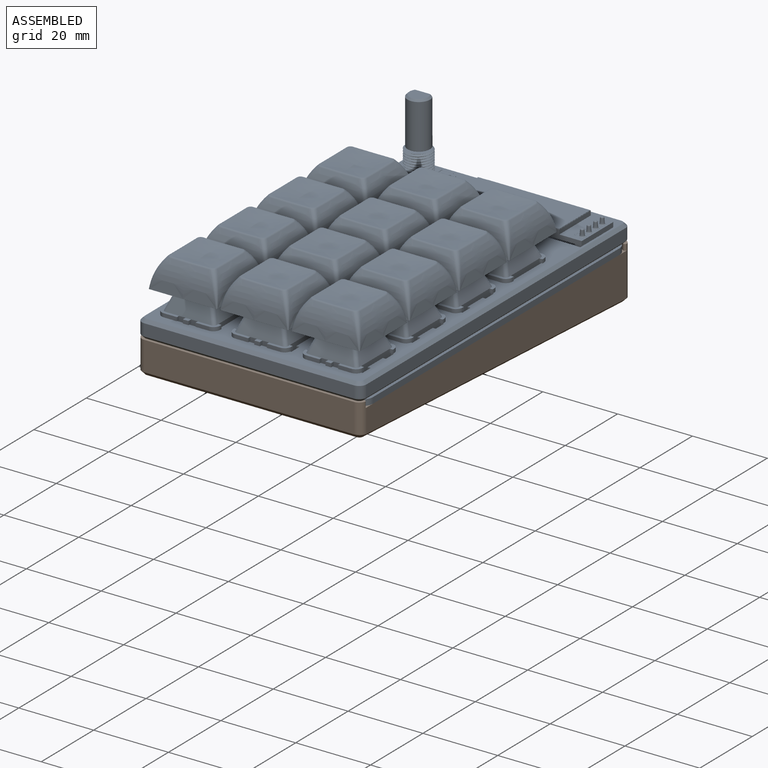
[diagram: assembled view]
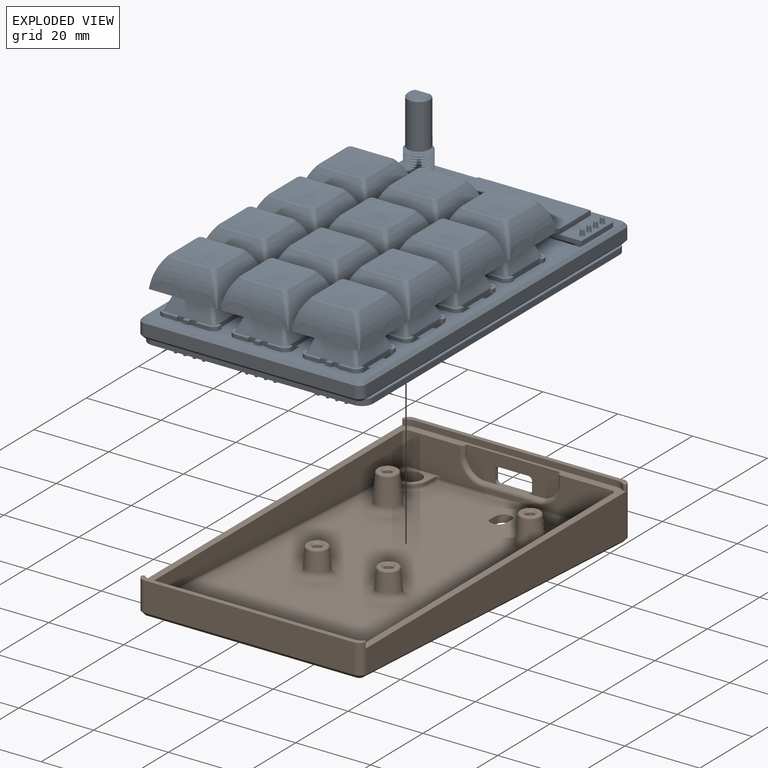
[diagram: exploded view]
GUIDED TOUR — FREECAD ASSEMBLY "keeby cat case slim-edge asm3"

This assembly has 2 components, labeled P0..P1 below (a component is one placed body or linked part; the same part can appear more than once), held together by 0 modeled joints plus 1 derived contact edge. A joint is a constraint between two components; its type names the relative motion it leaves free:
  CONTACT — a derived adjacency edge — the two components touch in the source model (clearance under 2% of the assembly's diagonal); it is measured from the geometry, not a modeled constraint.
Axis/direction vectors are unit vectors and 'through' points are millimeter coordinates, both in the assembly's world frame.

MATES
  1. CONTACT "contact_0_1": P0 <-> P1, contact direction (0.000, 0.000, -1.000) through (-27.88, -20.69, -1.68) mm (derived from contact, not a modeled constraint)

ASSEMBLY ORDER
  1. P0 — the base component [order verified]
  2. P1 [order verified]
(P1 verified with a relaxed clearance tolerance: the source model stores slight part interference there.)
Order-tag legend:
  [order verified] — this step's position reverses a verified removal order: the component was checked to insert without passing through the ones already placed.

Of the 2 components, 1 carries a construction recipe — the FreeCAD feature program (sketches with constraints, then the solid features that consume them) that regenerates the part from scratch, quoted from this document or from the linked companion document it references; the rest are supplied as boundary geometry only. The tour below walks the components in assembly order: each is shown spotlighted twice — in the assembled view, then in the exploded view, where a leader line traces a displaced component back to its assembled socket (components that stay in place when exploded have no leader line; saturated green if recipe-attached, orange if geometry-only; every other component desaturated gray) — followed by its recipe or geometry summary and the mates that hold it.
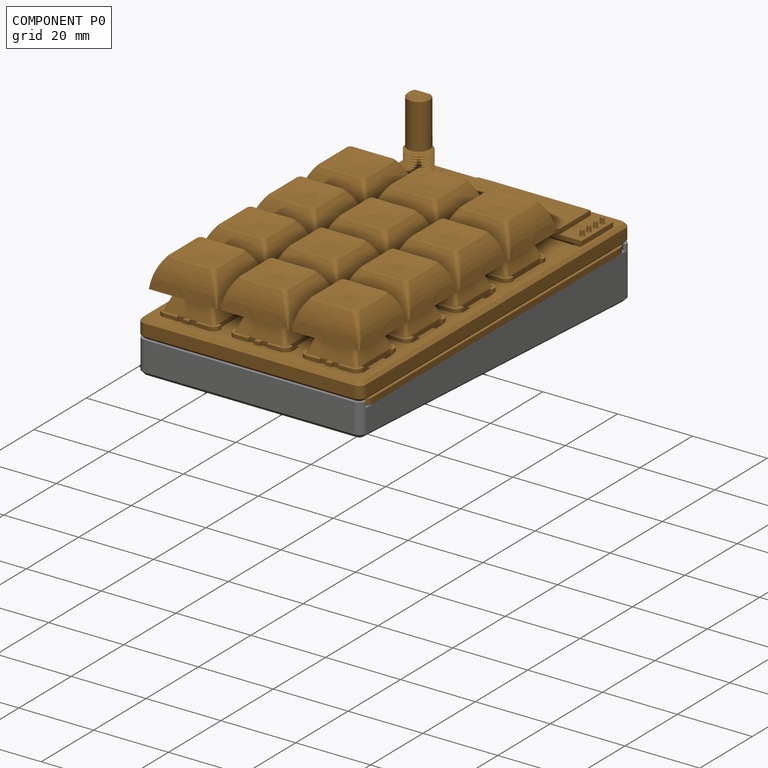
[diagram: component P0 — assembled]
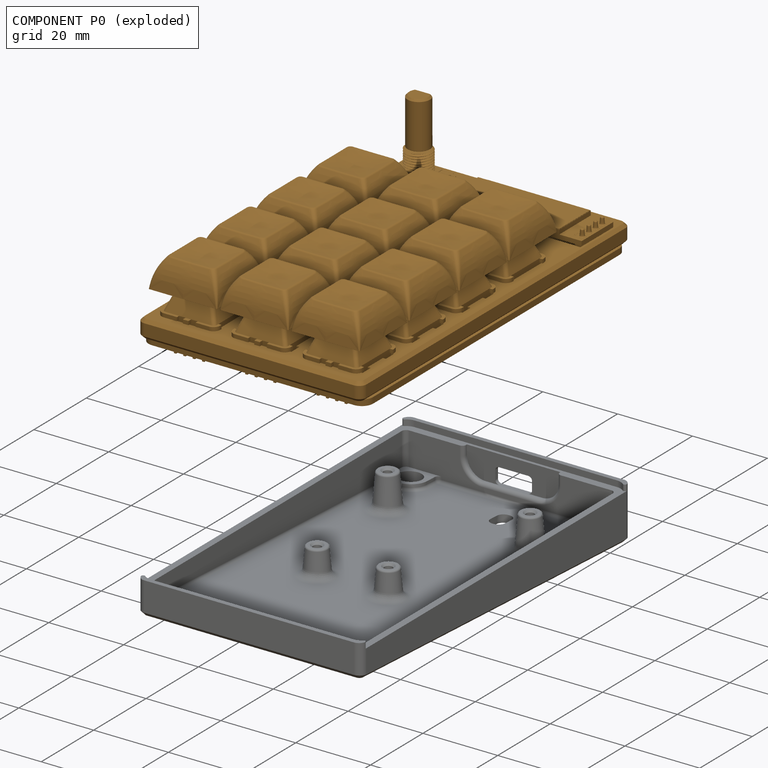
[diagram: component P0 — exploded]
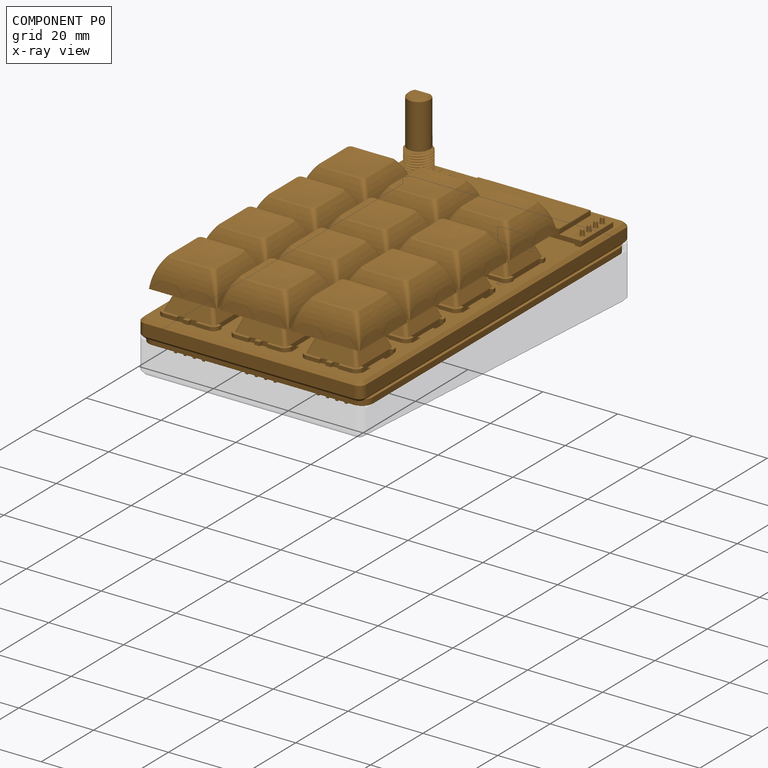
[diagram: component P0 — x-ray view]
COMPONENT P0 — geometry summary ("keeby cat"; no construction recipe available for this part):
  bounding box: 102.9 x 60.0 x 41.8 mm
  tessellated surface: 581,860 triangles
  volume: 65548 mm^3 (25% of its bounding box)
Held by: resting contact with P1 (derived edge).
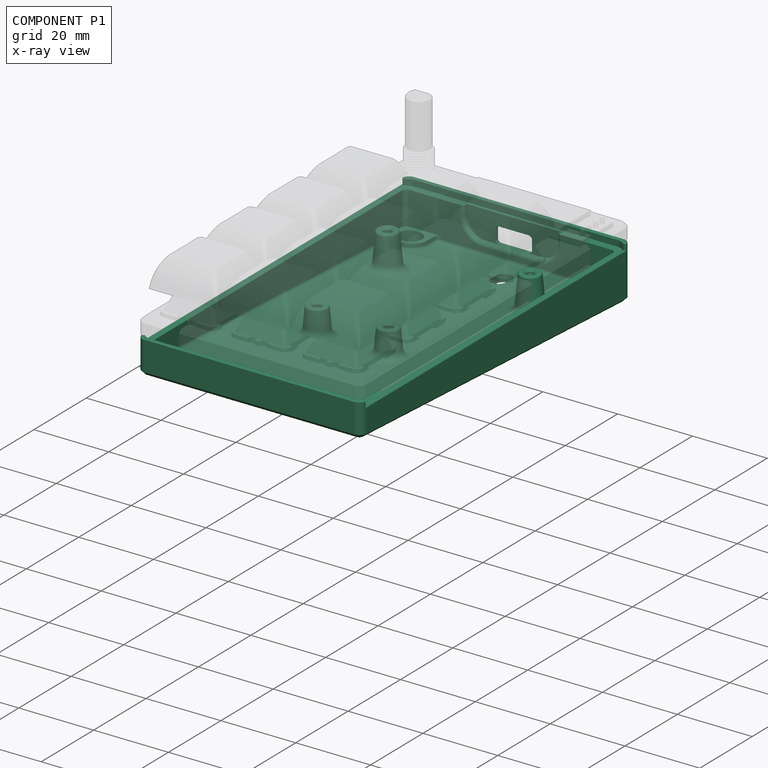
[diagram: component P1 — x-ray view]
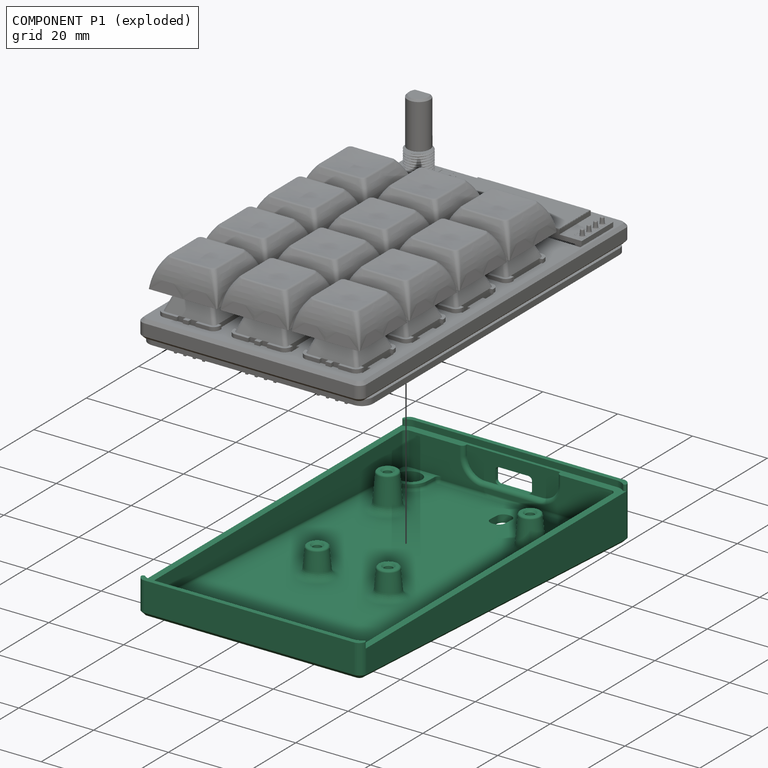
[diagram: component P1 — exploded]
COMPONENT P1 — recipe-attached ("lower case", modeled in this document).
Held by: resting contact with P0 (derived edge).
Construction recipe (the document's own serialized feature program — sketch geometry with constraints, then the solid features built on it; lengths are millimeters unless a unit is written):

FEATURE [PartDesign::ShapeBinder] CopyPcb_61fa
  Placement = pos=(-99.78,60.2375,-1.6) rot=(0,0,1;0rad)
  TraceSupport = false
  TreeRank = 0
FEATURE [PartDesign::SubShapeBinder] Binder
  BindCopyOnChange = 0
  BindMode = 0
  ClaimChildren = false
  Context = -> Part001 [Body001.Binder.]
  FillStyle = 0
  Fuse = false
  MakeFace = true
  PartialLoad = false
  Refine = true
  Relative = true
  Support = -> [Part[Body.Chamfer.Face24]]
  TreeRank = 0
  _Version = 2
FEATURE [Sketcher::SketchObject] Sketch
  ExternalGeometry = -> [CopyPcb_61fa,Binder]
  FullyConstrained = true
  MapMode = 5
  Placement = pos=(-99.78,60.2375,-1.6) rot=(1,0,0;3.14159rad)
  Support = -> [CopyPcb_61fa]
  TreeRank = 0
  sketch-geometry (6):
    g0: LineSegment StartX=62.16 StartY=158.562 StartZ=0 EndX=122.16 EndY=158.562 EndZ=0
    g1: LineSegment StartX=122.16 StartY=158.562 StartZ=0 EndX=122.16 EndY=55.5755 EndZ=0
    g2: LineSegment StartX=122.16 StartY=55.5755 StartZ=0 EndX=62.16 EndY=55.5755 EndZ=0
    g3: LineSegment StartX=62.16 StartY=55.5755 StartZ=0 EndX=62.16 EndY=158.562 EndZ=0
    g4: LineSegment [constr] StartX=119.16 StartY=55.5755 StartZ=0 EndX=119.16 EndY=57.069 EndZ=0
    g5: LineSegment [constr] StartX=119.16 StartY=157.069 StartZ=0 EndX=119.16 EndY=158.562 EndZ=0
  constraints (18):
    c: Coincident(g0,g1)
    c: Coincident(g1,g2)
    c: Coincident(g2,g3)
    c: Coincident(g3,g0)
    c: Horizontal(g0)
    c: Horizontal(g2)
    c: Vertical(g1)
    c: Vertical(g3)
    c: PointOnObject(g4,g2)
    c: Vertical(g4)
    c: Coincident(g-3,g4)
    c: Coincident(g5,g-4)
    c: PointOnObject(g5,g-5)
    c: Vertical(g5)
    c: Equal(g5,g4)
    c: PointOnObject(g-7,g3)
    c: PointOnObject(g5,g0)
    c: PointOnObject(g-6,g1)
FEATURE [PartDesign::Pad] Pad
  ClaimChildren = false
  Direction = (1,1,1)
  Fit = 0
  FitJoin = 0
  InnerFit = 0
  InnerFitJoin = 0
  InnerTaperAngle = 0
  InnerTaperAngleRev = 0
  Length = 25
  Length2 = 100
  NewSolid = false
  Placement = pos=(-99.78,60.2375,-1.6) rot=(0,0,1;0rad)
  Profile = -> Sketch
  Suppress = false
  TreeRank = 0
  Type = 0
  _ProfileBasedVersion = 0
FEATURE [Sketcher::SketchObject] Sketch001  label="slope sketch"
  ExternalGeometry = -> [Pad]
  FullyConstrained = true
  MapMode = 5
  Placement = pos=(22.38,60.2375,-1.6) rot=(0.57735,0.57735,0.57735;2.0944rad)
  Support = -> [Pad]
  TreeRank = 0
  sketch-geometry (8):
    g0: LineSegment [constr] StartX=-55.5755 StartY=0 StartZ=0 EndX=-158.562 EndY=0 EndZ=0
    g1: LineSegment [constr] StartX=-158.562 StartY=0 StartZ=0 EndX=-158.562 EndY=-7.22804 EndZ=0
    g2: LineSegment StartX=-158.562 StartY=-7.22804 StartZ=0 EndX=-55.5755 EndY=-12.6254 EndZ=0
    g3: LineSegment [constr] StartX=-55.5755 StartY=-12.6254 StartZ=0 EndX=-55.5755 EndY=0 EndZ=0
    g4: LineSegment StartX=-55.5755 StartY=-25 StartZ=0 EndX=-158.562 EndY=-25 EndZ=0
    g5: LineSegment [constr] StartX=-153.569 StartY=-7.48972 StartZ=0 EndX=-153.177 EndY=0 EndZ=0
    g6: LineSegment StartX=-158.562 StartY=-7.22804 StartZ=0 EndX=-158.562 EndY=-25 EndZ=0
    g7: LineSegment StartX=-55.5755 StartY=-12.6254 StartZ=0 EndX=-55.5755 EndY=-25 EndZ=0
  constraints (20):
    c: Coincident(g0,g-4)
    c: Coincident(g0,g-3)
    c: Coincident(g1,g0)
    c: PointOnObject(g1,g-3)
    c: Coincident(g2,g1)
    c: Coincident(g3,g0)
    c: Coincident(g4,g-3)
    c: Angle(g2,g4) = 0.0523599
    c: PointOnObject(g5,g2)
    c: Perpendicular(g2,g5)
    c: Distance(g5) = 7.5
    c: Distance(g5,g1) = 5
    c: PointOnObject(g5,g0)
    c: Coincident(g6,g2)
    c: Coincident(g6,g4)
    c: Coincident(g7,g2)
    c: Coincident(g7,g4)
    c: Vertical(g7)
    c: Coincident(g-4,g4)
    c: Coincident(g2,g3)
FEATURE [PartDesign::Pocket] Pocket
  BaseFeature = -> Pad
  ClaimChildren = false
  Fit = 0
  FitJoin = 0
  InnerFit = 0
  InnerFitJoin = 0
  InnerTaperAngle = 0
  InnerTaperAngleRev = 0
  Length = 5
  Length2 = 100
  NewSolid = false
  Placement = pos=(-99.78,60.2375,-1.6) rot=(0,0,1;0rad)
  Profile = -> Sketch001
  Suppress = false
  TreeRank = 0
  Type = 1
  _ProfileBasedVersion = 0
FEATURE [Sketcher::SketchObject] Sketch002
  ExternalGeometry = -> [CopyPcb_61fa,Sketch]
  FullyConstrained = true
  MapMode = 5
  Placement = pos=(-99.78,60.2375,-1.6) rot=(0,0,1;0rad)
  Support = -> [Pocket]
  TreeRank = 0
  sketch-geometry (4):
    g0: LineSegment StartX=122.16 StartY=-157.369 StartZ=0 EndX=62.16 EndY=-157.369 EndZ=0
    g1: LineSegment StartX=122.16 StartY=-56.769 StartZ=0 EndX=62.16 EndY=-56.769 EndZ=0
    g2: LineSegment StartX=122.16 StartY=-157.369 StartZ=0 EndX=122.16 EndY=-56.769 EndZ=0
    g3: LineSegment StartX=62.16 StartY=-56.769 StartZ=0 EndX=62.16 EndY=-157.369 EndZ=0
  constraints (13):
    c: Horizontal(g0)
    c: Horizontal(g1)
    c: Coincident(g2,g0)
    c: Coincident(g2,g1)
    c: Vertical(g2)
    c: Coincident(g3,g1)
    c: Coincident(g3,g0)
    c: Vertical(g3)
    c: Vertical(g0,g-5)
    c: Vertical(g0,g-6)
    c: DistanceY(g-5,g0) = 1.1935
    c: DistanceY(g2,g-3) = 0.3
    c: DistanceY(g-4,g1) = 0.3
FEATURE [PartDesign::Pad] Pad001
  BaseFeature = -> Pocket
  ClaimChildren = false
  Direction = (1,1,1)
  Fit = 0
  FitJoin = 0
  InnerFit = 0
  InnerFitJoin = 0
  InnerTaperAngle = 0
  InnerTaperAngleRev = 0
  Length = 1.6
  Length2 = 100
  NewSolid = false
  Placement = pos=(-99.78,60.2375,-1.6) rot=(0,0,1;0rad)
  Profile = -> Pad [Face5]
  Suppress = false
  TreeRank = 0
  Type = 0
  _ProfileBasedVersion = 0
FEATURE [PartDesign::Fillet] Fillet001
  Base = -> Pad001 [Edge2,Edge4,Edge9,Edge14]
  BaseFeature = -> Pad001
  NewSolid = false
  Placement = pos=(-99.78,60.2375,-1.6) rot=(0,0,1;0rad)
  Radius = 2
  SupportTransform = false
  Suppress = false
  TreeRank = 0
FEATURE [PartDesign::Pocket] Pocket001
  BaseFeature = -> Fillet001
  ClaimChildren = false
  Fit = 0
  FitJoin = 0
  InnerFit = 0
  InnerFitJoin = 0
  InnerTaperAngle = 0
  InnerTaperAngleRev = 0
  Length = 1.6
  Length2 = 100
  NewSolid = false
  Placement = pos=(-99.78,60.2375,-1.6) rot=(0,0,1;0rad)
  Profile = -> Sketch002
  Reversed = true
  Suppress = false
  TreeRank = 0
  Type = 0
  _ProfileBasedVersion = 0
FEATURE [Sketcher::SketchObject] Sketch003
  ExternalGeometry = -> [CopyPcb_61fa]
  FullyConstrained = true
  MapMode = 5
  Placement = pos=(-99.78,60.2375,-1.6) rot=(0,0,1;0rad)
  Support = -> [Pocket001]
  TreeRank = 0
  sketch-geometry (8):
    g0: LineSegment StartX=65.16 StartY=-58.869 StartZ=0 EndX=119.16 EndY=-58.869 EndZ=0
    g1: LineSegment StartX=120.36 StartY=-60.069 StartZ=0 EndX=120.36 EndY=-154.069 EndZ=0
    g2: LineSegment StartX=119.16 StartY=-155.269 StartZ=0 EndX=65.16 EndY=-155.269 EndZ=0
    g3: LineSegment StartX=63.96 StartY=-154.069 StartZ=0 EndX=63.96 EndY=-60.069 EndZ=0
    g4: ArcOfCircle CenterX=65.16 CenterY=-60.069 CenterZ=0 NormalX=0 NormalY=0 NormalZ=1 AngleXU=0 Radius=1.2 StartAngle=1.5708 EndAngle=3.14159
    g5: ArcOfCircle CenterX=119.16 CenterY=-60.069 CenterZ=0 NormalX=0 NormalY=0 NormalZ=1 AngleXU=0 Radius=1.2 StartAngle=0 EndAngle=1.5708
    g6: ArcOfCircle CenterX=119.16 CenterY=-154.069 CenterZ=0 NormalX=0 NormalY=0 NormalZ=1 AngleXU=0 Radius=1.2 StartAngle=4.71239 EndAngle=6.28319
    g7: ArcOfCircle CenterX=65.16 CenterY=-154.069 CenterZ=0 NormalX=0 NormalY=0 NormalZ=1 AngleXU=0 Radius=1.2 StartAngle=3.14159 EndAngle=4.71239
  constraints (20):
    c: Horizontal(g0)
    c: Horizontal(g2)
    c: Vertical(g1)
    c: Vertical(g3)
    c: Tangent(g0,g4) = 1.5708
    c: Tangent(g3,g4) = 1.5708
    c: Tangent(g0,g5) = 1.5708
    c: Tangent(g1,g5) = 1.5708
    c: Tangent(g1,g6) = 1.5708
    c: Tangent(g2,g6) = 1.5708
    c: Tangent(g2,g7) = 1.5708
    c: Tangent(g3,g7) = 1.5708
    c: Equal(g4,g5)
    c: Equal(g6,g7)
    c: Equal(g7,g4)
    c: Horizontal(g1,g-3)
    c: Vertical(g-4,g0)
    c: Vertical(g0,g-5)
    c: DistanceX(g1,g-3) = 1.8
    c: Horizontal(g1,g-6)
FEATURE [PartDesign::Pocket] Pocket002  label="PocketShelled"
  BaseFeature = -> Pocket001
  ClaimChildren = false
  Fit = 0
  FitJoin = 0
  InnerFit = 0
  InnerFitJoin = 0
  InnerTaperAngle = 0
  InnerTaperAngleRev = 0
  Length = 0
  Length2 = 100
  NewSolid = false
  Offset = -2
  Placement = pos=(-99.78,60.2375,-1.6) rot=(0,0,1;0rad)
  Profile = -> Sketch003
  Suppress = false
  TreeRank = 0
  Type = 3
  UpToFace = -> Pocket001 [Face5]
  _ProfileBasedVersion = 0
FEATURE [PartDesign::Chamfer] Chamfer001
  Angle = 45
  Base = -> Pocket002 [Edge4]
  BaseFeature = -> Pocket002
  ChamferType = 0
  FlipDirection = false
  NewSolid = false
  Placement = pos=(-99.78,60.2375,-1.6) rot=(0,0,1;0rad)
  Size = 1
  Size2 = 1
  SupportTransform = false
  Suppress = false
  TreeRank = 0
FEATURE [Sketcher::SketchObject] Sketch004
  ExternalGeometry = -> [Chamfer001]
  FullyConstrained = true
  MapMode = 5
  Placement = pos=(-99.78,59.5299,-15.1009) rot=(-1,0,0;0.05236rad)
  Support = -> [Chamfer001]
  TreeRank = 0
  sketch-geometry (10):
    g0: LineSegment [constr] StartX=68.36 StartY=-151.819 StartZ=0 EndX=68.36 EndY=-156.819 EndZ=0
    g1: Circle [constr] CenterX=68.36 CenterY=-151.819 CenterZ=0 NormalX=0 NormalY=0 NormalZ=1 AngleXU=0 Radius=3.1
    g2: GeomPoint [constr] X=68.36 Y=-154.919 Z=0
    g3: GeomPoint [constr] X=68.36 Y=-155.819 Z=0
    g4: LineSegment [constr] StartX=92.16 StartY=-158.019 StartZ=0 EndX=92.16 EndY=-98.0192 EndZ=0
    g5: Circle [constr] CenterX=68.36 CenterY=-151.819 CenterZ=0 NormalX=0 NormalY=0 NormalZ=1 AngleXU=0 Radius=5
    g6: LineSegment [constr] StartX=62.16 StartY=-107.23 StartZ=0 EndX=122.16 EndY=-107.23 EndZ=0
    g7: Circle [constr] CenterX=68.36 CenterY=-62.6413 CenterZ=0 NormalX=0 NormalY=0 NormalZ=1 AngleXU=0 Radius=4.4
    g8: Circle CenterX=68.36 CenterY=-151.819 CenterZ=0 NormalX=0 NormalY=0 NormalZ=1 AngleXU=0 Radius=4.4
    g9: Circle [constr] CenterX=68.36 CenterY=-62.6413 CenterZ=0 NormalX=0 NormalY=0 NormalZ=1 AngleXU=0 Radius=3.1
  constraints (25):
    c: Vertical(g0)
    c: Coincident(g1,g0)
    c: Radius(g1) = 3.1
    c: PointOnObject(g2,g0)
    c: PointOnObject(g3,g0)
    c: PointOnObject(g2,g1)
    c: DistanceY(g3,g2) = 0.9
    c: DistanceY(g0,g0) = 5
    c: Radius(g5) = 5
    c: Symmetric(g-3,g-3,g4)
    c: PointOnObject(g4,g-3)
    c: PointOnObject(g6,g-4)
    c: Coincident(g8,g0)
    c: DistanceY(g-3,g8) = 6.2
    c: Coincident(g8,g5)
    c: DistanceX(g-4,g8) = 6.2
    c: Radius(g8) = 4.4
    c: Equal(g8,g7)
    c: DistanceY(g8,g6) = 44.589  'mid_d_ref'
    c: Symmetric(g6,g6,g4)
    c: Equal(g4,g6)
    c: Coincident(g9,g7)
    c: Equal(g9,g1)
    c: Tangent(g7,g-5)
    c: Symmetric(g7,g8,g6)
FEATURE [Sketcher::SketchObject] Sketch005
  ExternalGeometry = -> [Chamfer001]
  FullyConstrained = true
  MapMode = 5
  Placement = pos=(-35.82,60.2375,-1.6) rot=(0.57735,0.57735,0.57735;2.0944rad)
  TreeRank = 0
  sketch-geometry (2):
    g0: LineSegment StartX=-58.869 StartY=-2.94246 StartZ=0 EndX=-59.2615 EndY=-10.4322 EndZ=0
    g1: LineSegment [constr] StartX=-58.869 StartY=0 StartZ=0 EndX=-58.869 EndY=-2.94246 EndZ=0
  constraints (6):
    c: PointOnObject(g0,g-3)
    c: Perpendicular(g-3,g0)
    c: Coincident(g1,g-4)
    c: Vertical(g1)
    c: Coincident(g1,g0)
    c: Distance(g0) = 7.5
FEATURE [PartDesign::SubtractivePipe] SubtractivePipe
  AuxilleryCurvelinear = true
  AuxillerySpineTangent = false
  BaseFeature = -> Chamfer001
  Binormal = (0,0,0)
  ClaimChildren = false
  Fit = 0
  FitJoin = 0
  InnerFit = 0
  InnerFitJoin = 0
  Mode = 0
  NewSolid = false
  Placement = pos=(-99.78,60.2375,-1.6) rot=(0,0,1;0rad)
  Profile = -> Sketch004
  Spine = -> Sketch005
  SpineTangent = false
  Suppress = false
  Transformation = 0
  Transition = 0
  TreeRank = 0
  _ProfileBasedVersion = 0
FEATURE [PartDesign::Mirrored] Mirrored
  BaseFeature = -> SubtractivePipe
  CopyShape = true
  MirrorPlane = -> Sketch004 [Axis1]
  NewSolid = false
  OriginalSubs = -> [SubtractivePipe]
  Originals = -> [SubtractivePipe]
  ParallelTransform = true
  Placement = pos=(-99.78,60.2375,-1.6) rot=(0,0,1;0rad)
  SubTransform = true
  Suppress = false
  TreeRank = 0
FEATURE [Sketcher::SketchObject] Sketch006
  ExternalGeometry = -> [Sketch004,Mirrored]
  FullyConstrained = true
  MapMode = 5
  Placement = pos=(-99.78,59.5299,-15.1009) rot=(-1,0,0;0.05236rad)
  Support = -> [Mirrored]
  TreeRank = 0
  expr: Constraints[4] = Sketch004.Constraints.mid_d_ref
  sketch-geometry (3):
    g0: Circle CenterX=68.36 CenterY=-151.819 CenterZ=0 NormalX=0 NormalY=0 NormalZ=1 AngleXU=0 Radius=3.1
    g1: LineSegment [constr] StartX=62.16 StartY=-107.23 StartZ=0 EndX=122.16 EndY=-107.23 EndZ=0
    g2: LineSegment [constr] StartX=92.16 StartY=-98.0192 StartZ=0 EndX=92.16 EndY=-158.019 EndZ=0
  constraints (8):
    c: Coincident(g0,g-3)
    c: Radius(g0) = 3.1
    c: PointOnObject(g2,g-6)
    c: PointOnObject(g1,g-5)
    c: DistanceY(g0,g1) = 44.589
    c: Symmetric(g-8,g0,g2)
    c: Symmetric(g1,g1,g2)
    c: Equal(g2,g1)
FEATURE [Sketcher::SketchObject] Sketch007
  ExternalGeometry = -> [Mirrored]
  FullyConstrained = true
  MapMode = 5
  Placement = pos=(-35.82,60.2375,-1.6) rot=(0.57735,0.57735,0.57735;2.0944rad)
  Support = -> [Mirrored]
  TreeRank = 0
  sketch-geometry (1):
    g0: LineSegment StartX=-152.319 StartY=-5.55526 StartZ=0 EndX=-152.58 EndY=-10.5484 EndZ=0
  constraints (3):
    c: Distance(g0) = 5
    c: Coincident(g-3,g0)
    c: Perpendicular(g-3,g0)
FEATURE [PartDesign::SubtractivePipe] SubtractivePipe001
  AuxilleryCurvelinear = true
  AuxillerySpineTangent = false
  BaseFeature = -> Mirrored
  Binormal = (0,0,0)
  ClaimChildren = false
  Fit = 0
  FitJoin = 0
  InnerFit = 0
  InnerFitJoin = 0
  Mode = 0
  NewSolid = false
  Placement = pos=(-99.78,60.2375,-1.6) rot=(0,0,1;0rad)
  Profile = -> Sketch006
  Spine = -> Sketch007
  SpineTangent = false
  Suppress = false
  Transformation = 0
  Transition = 0
  TreeRank = 0
  _ProfileBasedVersion = 0
FEATURE [PartDesign::Mirrored] Mirrored001
  CopyShape = true
  MirrorPlane = -> Sketch006 [Axis0]
  NewSolid = false
  ParallelTransform = true
  Placement = pos=(-99.78,60.2375,-1.6) rot=(0,0,1;0rad)
  SubTransform = true
  Suppress = false
  TreeRank = 0
FEATURE [PartDesign::Mirrored] Mirrored002
  CopyShape = true
  MirrorPlane = -> Sketch006 [Axis1]
  NewSolid = false
  ParallelTransform = true
  Placement = pos=(-99.78,60.2375,-1.6) rot=(0,0,1;0rad)
  SubTransform = true
  Suppress = false
  TreeRank = 0
FEATURE [PartDesign::MultiTransform] MultiTransform
  BaseFeature = -> SubtractivePipe001
  CopyShape = true
  NewSolid = false
  OriginalSubs = -> [SubtractivePipe001]
  Originals = -> [SubtractivePipe001]
  ParallelTransform = true
  Placement = pos=(-99.78,60.2375,-1.6) rot=(0,0,1;0rad)
  SubTransform = true
  Suppress = false
  Transformations = -> [Mirrored001,Mirrored002]
  TreeRank = 0
FEATURE [Sketcher::SketchObject] Sketch008  label="Boss_profile"
  ExternalGeometry = -> [MultiTransform,Sketch004]
  FullyConstrained = true
  MapMode = 5
  Placement = pos=(-99.78,59.5299,-15.1009) rot=(-1,0,0;0.05236rad)
  Support = -> [MultiTransform]
  TreeRank = 0
  sketch-geometry (7):
    g0: LineSegment [constr] StartX=140.426 StartY=-107.23 StartZ=0 EndX=43.8939 EndY=-107.23 EndZ=0
    g1: LineSegment [constr] StartX=92.16 StartY=-58.2413 StartZ=0 EndX=92.16 EndY=-154.774 EndZ=0
    g2: LineSegment StartX=68.36 StartY=-147.419 StartZ=0 EndX=63.96 EndY=-147.419 EndZ=0
    g3: LineSegment StartX=63.96 StartY=-147.419 StartZ=0 EndX=63.96 EndY=-156.219 EndZ=0
    g4: LineSegment StartX=68.36 StartY=-156.219 StartZ=0 EndX=63.96 EndY=-156.219 EndZ=0
    g5: ArcOfCircle CenterX=68.36 CenterY=-151.819 CenterZ=0 NormalX=0 NormalY=0 NormalZ=1 AngleXU=0 Radius=4.4 StartAngle=4.71239 EndAngle=7.85398
    g6: Circle CenterX=68.36 CenterY=-151.819 CenterZ=0 NormalX=0 NormalY=0 NormalZ=1 AngleXU=0 Radius=3.1
  constraints (20):
    c: Equal(g1,g0)
    c: PointOnObject(g1,g-4)
    c: PointOnObject(g1,g-6)
    c: Symmetric(g0,g0,g1)
    c: Horizontal(g2)
    c: Vertical(g3)
    c: Horizontal(g4)
    c: Symmetric(g-8,g-7,g1)
    c: Coincident(g3,g4)
    c: Coincident(g5,g-7)
    c: Coincident(g5,g2)
    c: Coincident(g5,g4)
    c: Tangent(g5,g2)
    c: Tangent(g5,g4)
    c: Coincident(g2,g3)
    c: PointOnObject(g-6,g5)
    c: PointOnObject(g2,g-10)
    c: Symmetric(g5,g-5,g0)
    c: Coincident(g6,g5)
    c: Equal(g6,g-7)
FEATURE [Sketcher::SketchObject] Sketch009  label="Boss_path"
  ExternalGeometry = -> [MultiTransform]
  FullyConstrained = true
  MapMode = 5
  Placement = pos=(-35.82,60.2375,-1.6) rot=(0.57735,0.57735,0.57735;2.0944rad)
  Support = -> [MultiTransform]
  TreeRank = 0
  sketch-geometry (1):
    g0: LineSegment StartX=-152.235 StartY=-3.95472 StartZ=0 EndX=-152.423 EndY=-7.54979 EndZ=0
  constraints (4):
    c: Distance(g0) = 3.6
    c: PointOnObject(g0,g-4)
    c: PointOnObject(g-3,g0)
    c: Perpendicular(g0,g-4)
FEATURE [PartDesign::AdditivePipe] AdditivePipe
  AuxilleryCurvelinear = true
  AuxillerySpineTangent = false
  BaseFeature = -> MultiTransform
  Binormal = (0,0,0)
  ClaimChildren = false
  Fit = 0
  FitJoin = 0
  InnerFit = 0
  InnerFitJoin = 0
  Mode = 0
  NewSolid = false
  Placement = pos=(-99.78,60.2375,-1.6) rot=(0,0,1;0rad)
  Profile = -> Sketch008
  Spine = -> Sketch009
  SpineTangent = false
  Suppress = false
  Transformation = 0
  Transition = 0
  TreeRank = 0
  _ProfileBasedVersion = 0
FEATURE [PartDesign::Mirrored] Mirrored003
  CopyShape = true
  MirrorPlane = -> Sketch008 [Axis0]
  NewSolid = false
  ParallelTransform = true
  Placement = pos=(-99.78,60.2375,-1.6) rot=(0,0,1;0rad)
  SubTransform = true
  Suppress = false
  TreeRank = 0
FEATURE [PartDesign::Mirrored] Mirrored004
  CopyShape = true
  MirrorPlane = -> Sketch008 [Axis1]
  NewSolid = false
  ParallelTransform = true
  Placement = pos=(-99.78,60.2375,-1.6) rot=(0,0,1;0rad)
  SubTransform = true
  Suppress = false
  TreeRank = 0
FEATURE [PartDesign::MultiTransform] MultiTransform001  label="FeetBoss_multi"
  BaseFeature = -> AdditivePipe
  CopyShape = true
  NewSolid = false
  OriginalSubs = -> [AdditivePipe]
  Originals = -> [AdditivePipe]
  ParallelTransform = true
  Placement = pos=(-99.78,60.2375,-1.6) rot=(0,0,1;0rad)
  SubTransform = true
  Suppress = false
  Transformations = -> [Mirrored003,Mirrored004]
  TreeRank = 0
FEATURE [Sketcher::SketchObject] Sketch010  label="USB hole Sketch"
  ExternalGeometry = -> [MultiTransform001]
  FullyConstrained = true
  MapMode = 5
  Placement = pos=(-99.78,4.662,-1.6) rot=(0,0.707107,0.707107;3.14159rad)
  Support = -> [MultiTransform001]
  TreeRank = 0
  sketch-geometry (5):
    g0: LineSegment StartX=-97.06 StartY=-3.2 StartZ=0 EndX=-87.26 EndY=-3.2 EndZ=0
    g1: LineSegment StartX=-87.26 StartY=-3.2 StartZ=0 EndX=-87.26 EndY=-7.5 EndZ=0
    g2: LineSegment StartX=-87.26 StartY=-7.5 StartZ=0 EndX=-97.06 EndY=-7.5 EndZ=0
    g3: LineSegment StartX=-97.06 StartY=-7.5 StartZ=0 EndX=-97.06 EndY=-3.2 EndZ=0
    g4: LineSegment [constr] StartX=-92.16 StartY=-7.5 StartZ=0 EndX=-92.16 EndY=-11.6254 EndZ=0
  constraints (14):
    c: Coincident(g0,g1)
    c: Coincident(g1,g2)
    c: Coincident(g2,g3)
    c: Coincident(g3,g0)
    c: Horizontal(g0)
    c: Horizontal(g2)
    c: Vertical(g1)
    c: Vertical(g3)
    c: Vertical(g4)
    c: Symmetric(g2,g1,g4)
    c: DistanceY(g3,g3) = 4.3
    c: DistanceX(g0,g0) = 9.8
    c: DistanceY(g0,g-1) = 3.2
    c: Symmetric(g-3,g-3,g4)
FEATURE [Sketcher::SketchObject] Sketch017
  ExternalGeometry = -> [MultiTransform001]
  FullyConstrained = true
  MapMode = 5
  Placement = pos=(-99.78,59.5299,-15.1009) rot=(-1,0,0;0.05236rad)
  Support = -> [MultiTransform001]
  TreeRank = 0
  sketch-geometry (6):
    g0: LineSegment StartX=111.56 StartY=-58.2413 StartZ=0 EndX=111.56 EndY=-62.6413 EndZ=0
    g1: LineSegment StartX=72.76 StartY=-62.6413 StartZ=0 EndX=72.76 EndY=-58.2413 EndZ=0
    g2: LineSegment StartX=68.36 StartY=-58.2413 StartZ=0 EndX=72.76 EndY=-58.2413 EndZ=0
    g3: LineSegment StartX=111.56 StartY=-58.2413 StartZ=0 EndX=115.96 EndY=-58.2413 EndZ=0
    g4: ArcOfCircle CenterX=68.36 CenterY=-62.6413 CenterZ=0 NormalX=0 NormalY=0 NormalZ=1 AngleXU=0 Radius=4.4 StartAngle=6.28318 EndAngle=7.85398
    g5: ArcOfCircle CenterX=115.96 CenterY=-62.6413 CenterZ=0 NormalX=0 NormalY=0 NormalZ=1 AngleXU=0 Radius=4.4 StartAngle=1.5708 EndAngle=3.14159
  constraints (16):
    c: Vertical(g1)
    c: Vertical(g0)
    c: Coincident(g2,g1)
    c: Horizontal(g2)
    c: Coincident(g3,g0)
    c: Horizontal(g3)
    c: Coincident(g4,g1)
    c: Coincident(g5,g0)
    c: Tangent(g0,g5)
    c: Coincident(g4,g2)
    c: Coincident(g-4,g2)
    c: Coincident(g4,g-4)
    c: Tangent(g1,g4)
    c: Coincident(g5,g-5)
    c: Coincident(g5,g3)
    c: Coincident(g3,g-5)
FEATURE [PartDesign::Pad] Pad004
  BaseFeature = -> MultiTransform001
  ClaimChildren = false
  Direction = (1,1,1)
  Fit = 0
  FitJoin = 0
  InnerFit = 0
  InnerFitJoin = 0
  InnerTaperAngle = 0
  InnerTaperAngleRev = 0
  Length = 10
  Length2 = 100
  NewSolid = false
  Placement = pos=(-99.78,60.2375,-1.6) rot=(0,0,1;0rad)
  Profile = -> Sketch017
  Suppress = false
  TreeRank = 0
  Type = 3
  UpToFace = -> MultiTransform001 [Face56]
  _ProfileBasedVersion = 0
FEATURE [PartDesign::Pocket] Pocket003  label="USB hole"
  BaseFeature = -> Pad004
  ClaimChildren = false
  Fit = 0
  FitJoin = 0
  InnerFit = 0
  InnerFitJoin = 0
  InnerTaperAngle = 0
  InnerTaperAngleRev = 0
  Length = 5
  Length2 = 100
  NewSolid = false
  Placement = pos=(-99.78,60.2375,-1.6) rot=(0,0,1;0rad)
  Profile = -> Sketch010
  Suppress = false
  TreeRank = 0
  Type = 2
  _ProfileBasedVersion = 0
FEATURE [Sketcher::SketchObject] Sketch011  label="USB indent sketch"
  ExternalGeometry = -> [Pocket003]
  FullyConstrained = true
  MapMode = 5
  Placement = pos=(-99.78,4.662,-1.6) rot=(0,0.707107,0.707107;3.14159rad)
  Support = -> [Pocket003]
  TreeRank = 0
  sketch-geometry (12):
    g0: LineSegment StartX=-85.76 StartY=-9 StartZ=0 EndX=-98.56 EndY=-9 EndZ=0
    g1: LineSegment StartX=-98.56 StartY=-9 StartZ=0 EndX=-98.56 EndY=-1.7 EndZ=0
    g2: LineSegment StartX=-98.56 StartY=-1.7 StartZ=0 EndX=-85.76 EndY=-1.7 EndZ=0
    g3: LineSegment StartX=-85.76 StartY=-1.7 StartZ=0 EndX=-85.76 EndY=-9 EndZ=0
    g4: LineSegment [constr] StartX=-97.06 StartY=-3.2 StartZ=0 EndX=-97.06 EndY=-1.7 EndZ=0
    g5: LineSegment [constr] StartX=-97.06 StartY=-3.2 StartZ=0 EndX=-98.56 EndY=-3.2 EndZ=0
    g6: LineSegment [constr] StartX=-87.26 StartY=-7.5 StartZ=0 EndX=-87.26 EndY=-9 EndZ=0
    g7: LineSegment [constr] StartX=-87.26 StartY=-7.5 StartZ=0 EndX=-85.76 EndY=-7.5 EndZ=0
    g8: LineSegment [constr] StartX=-98.56 StartY=-1.7 StartZ=0 EndX=-85.76 EndY=-9 EndZ=0
    g9: LineSegment [constr] StartX=-85.76 StartY=-1.7 StartZ=0 EndX=-98.56 EndY=-9 EndZ=0
    g10: GeomPoint [constr] X=-92.16 Y=-5.35 Z=0
    g11: LineSegment [constr] StartX=-92.16 StartY=-5.35 StartZ=0 EndX=-92.16 EndY=-9 EndZ=0
  constraints (32):
    c: Coincident(g0,g1)
    c: Coincident(g1,g2)
    c: Coincident(g2,g3)
    c: Coincident(g3,g0)
    c: Horizontal(g0)
    c: Horizontal(g2)
    c: Vertical(g1)
    c: Vertical(g3)
    c: Coincident(g4,g-4)
    c: PointOnObject(g4,g2)
    c: Vertical(g4)
    c: Coincident(g5,g4)
    c: PointOnObject(g5,g1)
    c: Horizontal(g5)
    c: Equal(g5,g4)
    c: Coincident(g6,g-3)
    c: PointOnObject(g6,g0)
    c: Vertical(g6)
    c: Coincident(g7,g6)
    c: PointOnObject(g7,g3)
    c: Horizontal(g7)
    c: Equal(g7,g6)
    c: Coincident(g8,g1)
    c: Coincident(g8,g0)
    c: Coincident(g9,g2)
    c: Coincident(g9,g0)
    c: PointOnObject(g10,g8)
    c: Coincident(g11,g10)
    c: PointOnObject(g11,g0)
    c: Symmetric(g-4,g6,g11)
    c: PointOnObject(g10,g9)
    c: DistanceX(g5,g5) = 1.5
FEATURE [PartDesign::Pocket] Pocket004  label="USB indent"
  BaseFeature = -> Pocket003
  ClaimChildren = false
  Fit = 0
  FitJoin = 0
  InnerFit = 0
  InnerFitJoin = 0
  InnerTaperAngle = 0
  InnerTaperAngleRev = 0
  Length = 1
  Length2 = 100
  NewSolid = false
  Placement = pos=(-99.78,60.2375,-1.6) rot=(0,0,1;0rad)
  Profile = -> Sketch011
  Suppress = false
  TreeRank = 0
  Type = 0
  _ProfileBasedVersion = 0
FEATURE [PartDesign::Fillet] Fillet002  label="Fillet USB inset"
  Base = -> Pocket004 [Edge206,Edge210,Edge205,Edge208]
  BaseFeature = -> Pocket004
  NewSolid = false
  Placement = pos=(-99.78,60.2375,-1.6) rot=(0,0,1;0rad)
  Radius = 2
  SupportTransform = false
  Suppress = false
  TreeRank = 0
FEATURE [PartDesign::Draft] Draft  label="Draft USB inset"
  Angle = 45
  Base = -> Fillet002 [Face6]
  BaseFeature = -> Fillet002
  NeutralPlane = -> Fillet002 [Face14]
  NewSolid = false
  Placement = pos=(-99.78,60.2375,-1.6) rot=(0,0,1;0rad)
  SupportTransform = false
  Suppress = false
  TreeRank = 0
FEATURE [PartDesign::Fillet] Fillet003  label="Fillet USB cut"
  Base = -> Draft [Edge107,Edge101,Edge103,Edge105]
  BaseFeature = -> Draft
  NewSolid = false
  Placement = pos=(-99.78,60.2375,-1.6) rot=(0,0,1;0rad)
  Radius = 1
  SupportTransform = false
  Suppress = false
  TreeRank = 0
FEATURE [PartDesign::Body] Body001
  AutoGroupSolids = false
  ExportMode = 0
  Group = -> [CopyPcb_61fa,Binder,Sketch,Pad,Sketch001,Pocket,Sketch002,Pad001,Fillet001,Pocket001,Sketch003,Pocket002,Chamfer001,Sketch005,Sketch004,SubtractivePipe,Mirrored,Sketch006,Sketch007,SubtractivePipe001,MultiTransform,Mirrored001,Mirrored002,Sketch008,Sketch009,AdditivePipe,MultiTransform001,Sketch017,Mirrored003,Mirrored004,Sketch010,Pad004,Pocket003,Sketch011,Pocket004,Fillet002,Draft,Fillet003,+24 more]
  Origin = -> Origin014
  Tip = -> Fillet011
  TreeRank = 0
  _ExportChildren = -> [CopyPcb_61fa,Binder,Pad,Pocket,Pad001,Fillet001,Pocket001,Pocket002,Chamfer001,SubtractivePipe,Mirrored,SubtractivePipe001,MultiTransform,AdditivePipe,MultiTransform001,Pad004,Pocket003,Pocket004,Fillet002,Draft,Fillet003,Pocket005,Chamfer002,Pad002,Draft001,Fillet004,Pocket006,Fillet005,Fillet012,Fillet007,Fillet008,Fillet009,Pad003,MultiTransform002,Chamfer003,Fillet010,Fillet011,Import,+1 more]
  _GroupVersion = 1
PROVENANCE & LICENSES
Assembly and component geometry: a FreeCAD (.FCStd) document from a public repository crawl; components, placements and joints were extracted with FreeCAD and each solid tessellated.
Construction recipes: the document's own serialized feature recipes (and, for linked parts, the recipes of companion documents from the same project).
License: gpl-3.0.
Joints: native FreeCAD joints and A2plus constraints are mapped to standard mate types; edges marked 'derived from contact' connect touching components and are measured from the geometry, not modeled.
Verification: 1 of this assembly's 2 components carries a construction recipe (1 from this document itself); the rest are geometry-only. Every component's tessellation passed the extraction mesh gates (mesh-volume checksum against the B-rep where available, bounding-box inflation <= 2%).
Renders: orthographic iso camera (az 35 / el 25); the floor grid conveys scale (grid pitch printed in each image; no ruler). In the exploded view each component is displaced by its stored offset vector: the offsets alone carry the explosion direction (mate normal/axis signs are not orientation cues and do not encode it), and separation distances are assigned per mate-chain, not proportionally to assembly-order depth.
